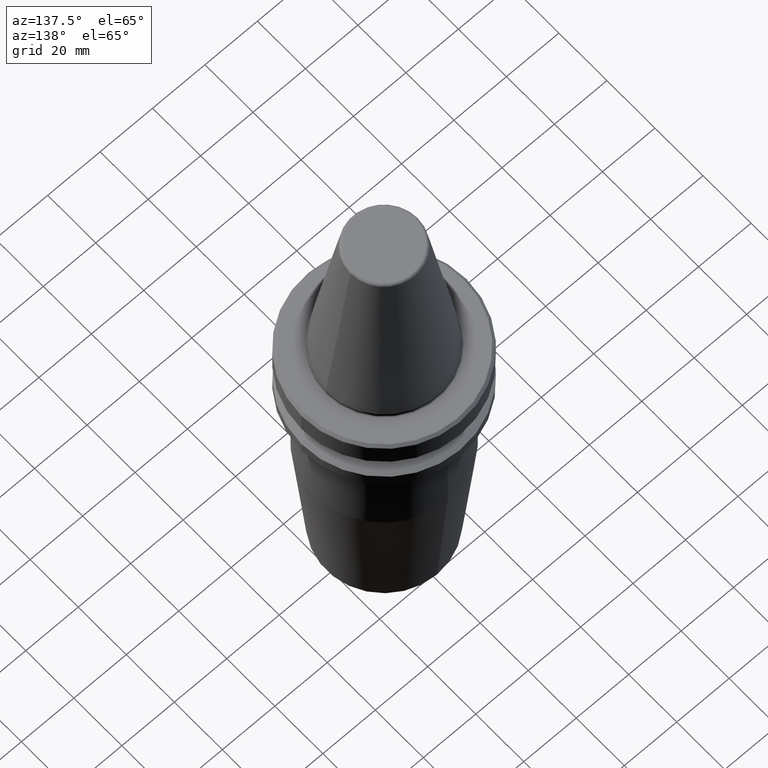
[diagram: clean part render]
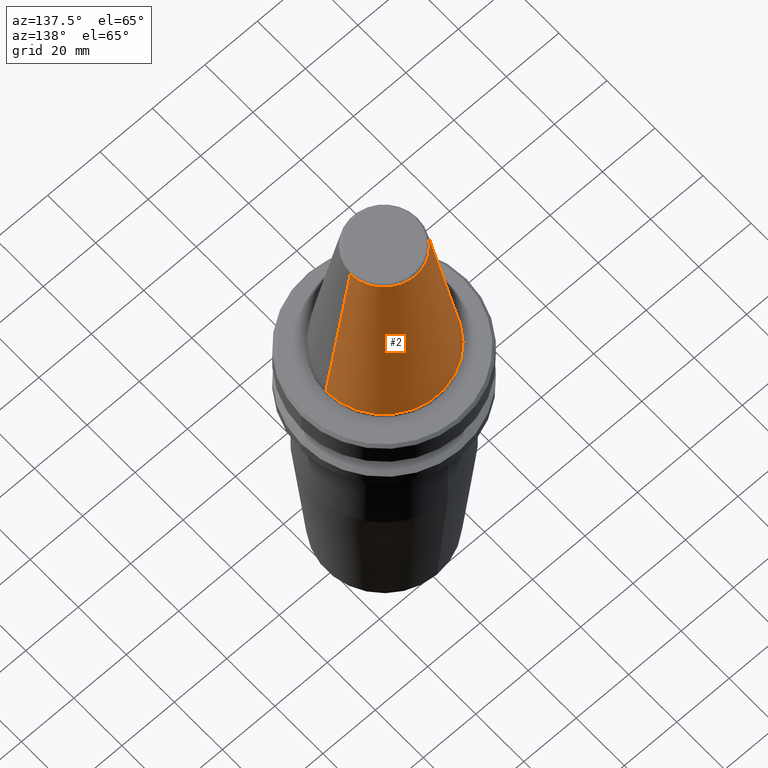
[diagram: same view with one face highlighted and labeled with its STEP entity id]
A machine part, auxiliary view. The second image highlights one B-rep face of the part: STEP entity #2.
In plain terms, the highlighted conical surface has half-angle 8.297 deg.
Its self-contained STEP definition (entity closure, byte-faithful):
#2 = ADVANCED_FACE ( 'NONE', ( #878 ), #420, .T. ) ;
#34 = CARTESIAN_POINT ( 'NONE',  ( -22.22500000000000500, 2.721777511104993200E-015, 0.0000000000000000000 ) ) ;
#81 = AXIS2_PLACEMENT_3D ( 'NONE', #1142, #447, #588 ) ;
#104 = VECTOR ( 'NONE', #948, 1000.000000000000000 ) ;
#107 = EDGE_LOOP ( 'NONE', ( #767, #1066, #747, #300 ) ) ;
#185 = CARTESIAN_POINT ( 'NONE',  ( 0.0000000000000000000, 0.0000000000000000000, 0.0000000000000000000 ) ) ;
#254 = DIRECTION ( 'NONE',  ( 1.000000000000000000, 0.0000000000000000000, 0.0000000000000000000 ) ) ;
#300 = ORIENTED_EDGE ( 'NONE', *, *, #1021, .F. ) ;
#310 = CARTESIAN_POINT ( 'NONE',  ( 0.0000000000000000000, 0.0000000000000000000, 64.54430822726730800 ) ) ;
#357 = AXIS2_PLACEMENT_3D ( 'NONE', #310, #1029, #1058 ) ;
#403 = VERTEX_POINT ( 'NONE', #34 ) ;
#417 = VERTEX_POINT ( 'NONE', #932 ) ;
#420 = CONICAL_SURFACE ( 'NONE', #357, 12.81219950706224800, 0.1448138465474191100 ) ;
#447 = DIRECTION ( 'NONE',  ( -0.0000000000000000000, -0.0000000000000000000, 1.000000000000000000 ) ) ;
#462 = DIRECTION ( 'NONE',  ( -0.0000000000000000000, -0.0000000000000000000, 1.000000000000000000 ) ) ;
#480 = CARTESIAN_POINT ( 'NONE',  ( -12.81219950706224800, 0.0000000000000000000, 64.54430822726730800 ) ) ;
#523 = LINE ( 'NONE', #480, #1232 ) ;
#588 = DIRECTION ( 'NONE',  ( 1.000000000000000000, 0.0000000000000000000, 0.0000000000000000000 ) ) ;
#676 = VERTEX_POINT ( 'NONE', #990 ) ;
#693 = CIRCLE ( 'NONE', #705, 22.22500000000000500 ) ;
#705 = AXIS2_PLACEMENT_3D ( 'NONE', #185, #462, #254 ) ;
#747 = ORIENTED_EDGE ( 'NONE', *, *, #823, .T. ) ;
#757 = EDGE_CURVE ( 'NONE', #417, #929, #974, .T. ) ;
#767 = ORIENTED_EDGE ( 'NONE', *, *, #757, .F. ) ;
#823 = EDGE_CURVE ( 'NONE', #676, #403, #693, .T. ) ;
#848 = EDGE_CURVE ( 'NONE', #417, #676, #1151, .T. ) ;
#878 = FACE_OUTER_BOUND ( 'NONE', #107, .T. ) ;
#929 = VERTEX_POINT ( 'NONE', #1131 ) ;
#932 = CARTESIAN_POINT ( 'NONE',  ( 12.81219950706224800, 2.145409711370550300E-015, 64.54430822726730800 ) ) ;
#948 = DIRECTION ( 'NONE',  ( 0.1443082272673071000, 1.767266086135364600E-017, -0.9895327864921743500 ) ) ;
#974 = CIRCLE ( 'NONE', #81, 12.81219950706224800 ) ;
#990 = CARTESIAN_POINT ( 'NONE',  ( 22.22500000000000500, 0.0000000000000000000, 0.0000000000000000000 ) ) ;
#1021 = EDGE_CURVE ( 'NONE', #929, #403, #523, .T. ) ;
#1029 = DIRECTION ( 'NONE',  ( 0.0000000000000000000, 0.0000000000000000000, -1.000000000000000000 ) ) ;
#1043 = CARTESIAN_POINT ( 'NONE',  ( 12.81219950706224800, 1.569041911636107800E-015, 64.54430822726730800 ) ) ;
#1058 = DIRECTION ( 'NONE',  ( -1.000000000000000000, 0.0000000000000000000, 0.0000000000000000000 ) ) ;
#1066 = ORIENTED_EDGE ( 'NONE', *, *, #848, .T. ) ;
#1068 = DIRECTION ( 'NONE',  ( -0.1443082272673071000, 0.0000000000000000000, -0.9895327864921743500 ) ) ;
#1131 = CARTESIAN_POINT ( 'NONE',  ( -12.81219950706224800, 0.0000000000000000000, 64.54430822726730800 ) ) ;
#1142 = CARTESIAN_POINT ( 'NONE',  ( 0.0000000000000000000, 0.0000000000000000000, 64.54430822726730800 ) ) ;
#1151 = LINE ( 'NONE', #1043, #104 ) ;
#1232 = VECTOR ( 'NONE', #1068, 1000.000000000000000 ) ;